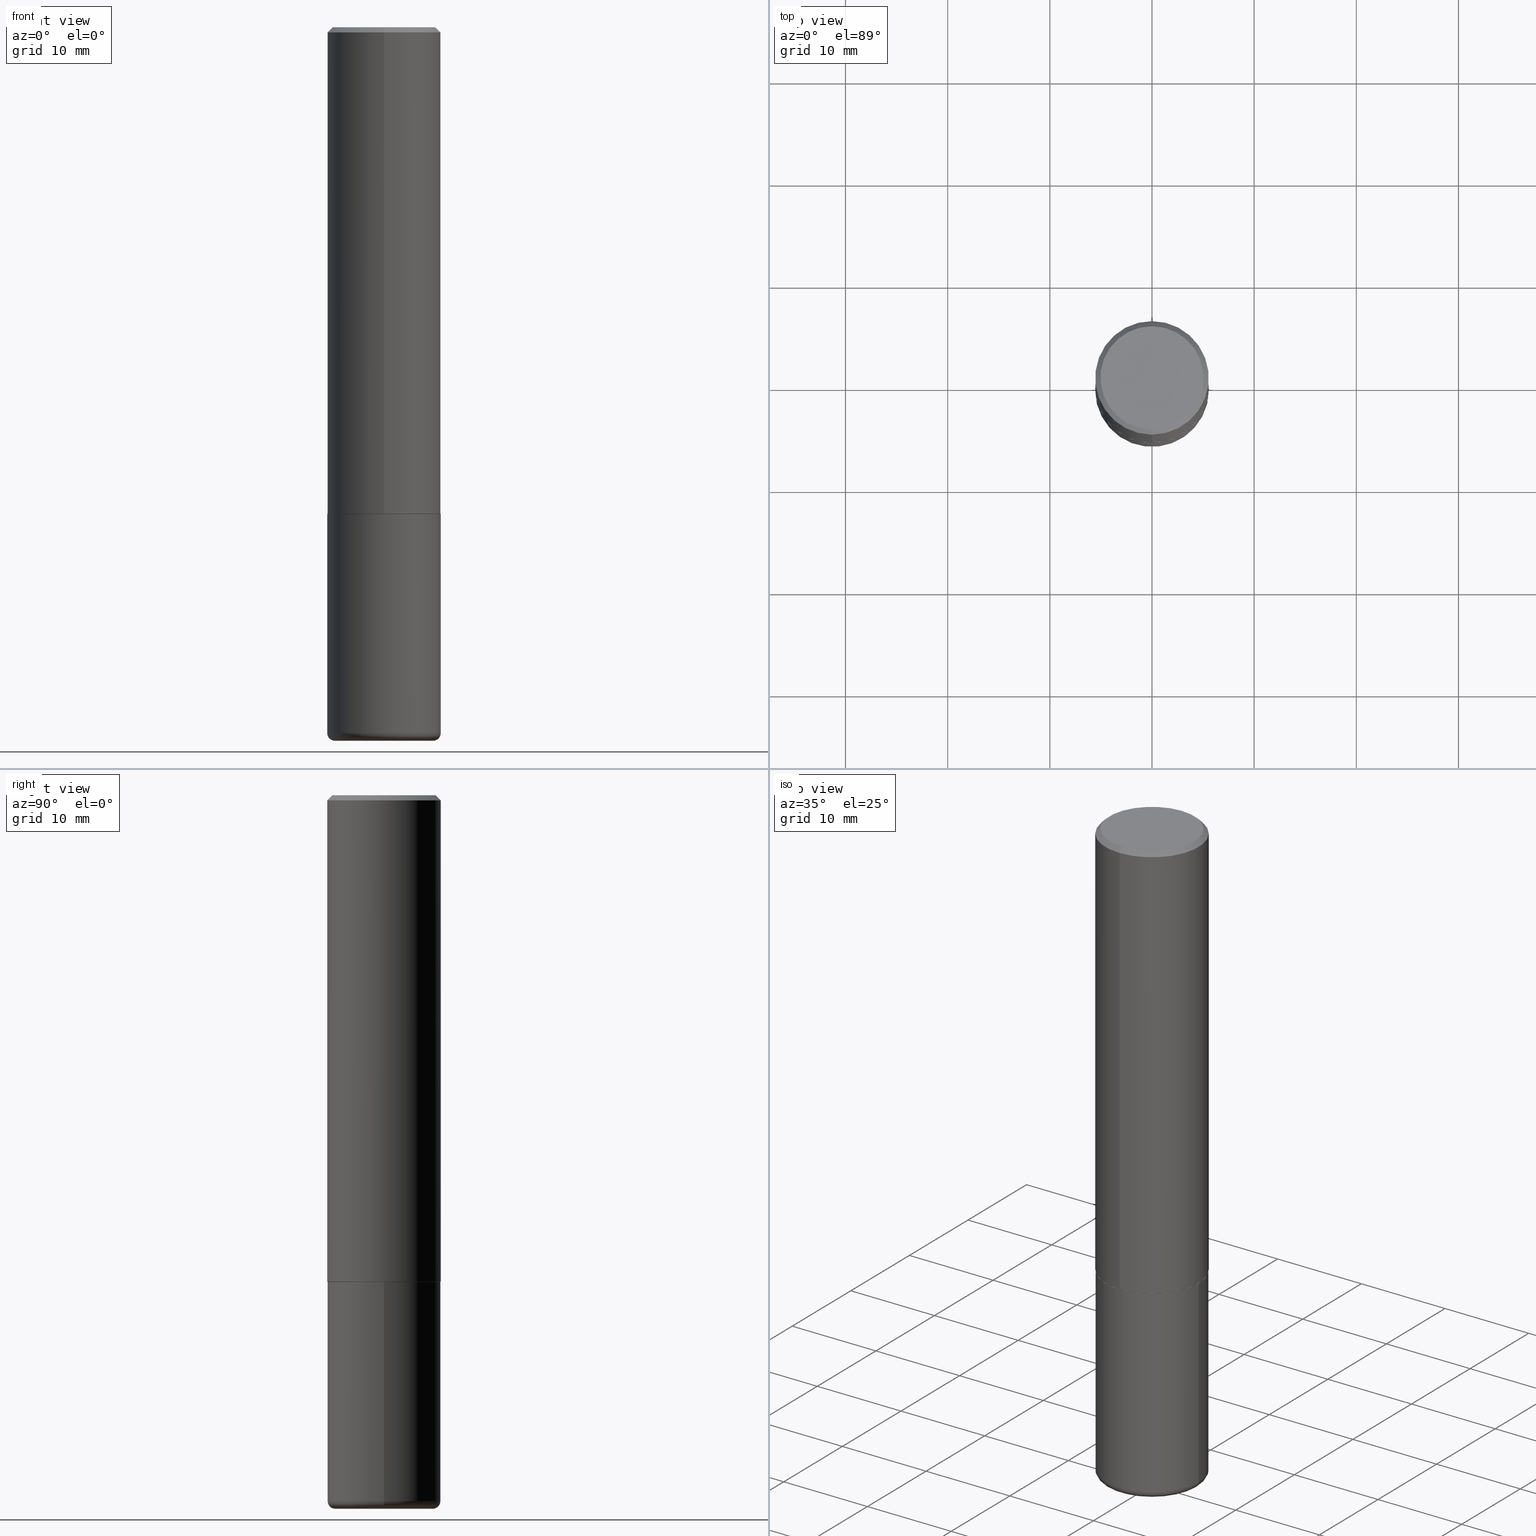
[diagram: canonical four-view strip — front | top / right | iso, engineering-drawing reading convention]
A machine part, canonical four-view strip (front | top / right | iso — engineering-drawing reading convention). The complete STEP part file that produces these views, byte-faithful:
ISO-10303-21;
HEADER;
FILE_DESCRIPTION (( 'STEP AP203' ),
    '1' );
FILE_NAME ('37163.STEP',
    '2024-03-01T21:19:41',
    ( '' ),
    ( '' ),
    'SwSTEP 2.0',
    'SolidWorks 2023',
    '' );
FILE_SCHEMA (( 'CONFIG_CONTROL_DESIGN' ));
ENDSEC;

DATA;
#1 = PLANE ( 'NONE',  #369 ) ;
#2 = DIMENSIONAL_EXPONENTS ( 1.000000000000000000, 0.000000000000000000, 0.000000000000000000, 0.000000000000000000, 0.000000000000000000, 0.000000000000000000, 0.000000000000000000 ) ;
#3 = APPROVAL_PERSON_ORGANIZATION ( #287, #378, #126 ) ;
#4 = DIRECTION ( 'NONE',  ( -1.000000000000000000, 6.982962677686265922E-15, -4.876176775795935793E-29 ) ) ;
#5 = DIRECTION ( 'NONE',  ( 1.000000000000000000, -6.982962677686271444E-15, 0.000000000000000000 ) ) ;
#6 = CARTESIAN_POINT ( 'NONE',  ( 4.584436167357195620E-29, -6.547698709831289980E-15, -1.875000000000000000 ) ) ;
#7 = EDGE_CURVE ( 'NONE', #402, #82, #205, .T. ) ;
#8 = CONICAL_SURFACE ( 'NONE', #124, 0.2187499999999999445, 0.7853981633974456145 ) ;
#9 = SECURITY_CLASSIFICATION_LEVEL ( 'unclassified' ) ;
#10 = CARTESIAN_POINT ( 'NONE',  ( 0.2187500000000000278, -1.527523085743871040E-15, 1.066663669705361025E-29 ) ) ;
#11 = ORIENTED_EDGE ( 'NONE', *, *, #362, .T. ) ;
#12 = PERSON_AND_ORGANIZATION_ROLE ( 'design_owner' ) ;
#13 = DIRECTION ( 'NONE',  ( 1.000000000000000000, -6.982962677686267499E-15, 0.000000000000000000 ) ) ;
#14 = DIRECTION ( 'NONE',  ( -2.445468806185136597E-29, 3.491481338843145583E-15, 1.000000000000000000 ) ) ;
#15 = CC_DESIGN_APPROVAL ( #378, ( #79 ) ) ;
#16 = ORIENTED_EDGE ( 'NONE', *, *, #114, .F. ) ;
#17 = DIRECTION ( 'NONE',  ( -2.445032622590504256E-29, 3.492105978576687648E-15, 1.000000000000000000 ) ) ;
#18 = CARTESIAN_POINT ( 'NONE',  ( 1.554312234475219551E-15, 0.2187500000000000833, -7.638981828136507804E-16 ) ) ;
#19 = CARTESIAN_POINT ( 'NONE',  ( 4.581991134734604485E-29, -6.544206603852712761E-15, -1.874000000000000110 ) ) ;
#20 = ORIENTED_EDGE ( 'NONE', *, *, #256, .F. ) ;
#21 = CIRCLE ( 'NONE', #49, 0.2187500000000001943 ) ;
#22 = MANIFOLD_SOLID_BREP ( 'Body-Move/Copy2[2]', #319 ) ;
#23 = EDGE_CURVE ( 'NONE', #82, #402, #382, .T. ) ;
#24 = VECTOR ( 'NONE', #147, 39.37007874015748143 ) ;
#25 = AXIS2_PLACEMENT_3D ( 'NONE', #388, #290, #389 ) ;
#26 = DATE_AND_TIME ( #412, #364 ) ;
#27 = CARTESIAN_POINT ( 'NONE',  ( -0.2187500000000000278, 1.554312234475219354E-15, -1.076017050993260762E-29 ) ) ;
#28 = APPROVAL_ROLE ( '' ) ;
#29 = EDGE_LOOP ( 'NONE', ( #182, #371, #47, #169 ) ) ;
#30 = APPLICATION_PROTOCOL_DEFINITION ( 'international standard', 'config_control_design', 1994, #279 ) ;
#31 = EDGE_CURVE ( 'NONE', #40, #148, #116, .T. ) ;
#32 = LINE ( 'NONE', #324, #343 ) ;
#33 = EDGE_CURVE ( 'NONE', #40, #347, #393, .T. ) ;
#34 = CARTESIAN_POINT ( 'NONE',  ( 0.000000000000000000, 0.000000000000000000, 0.000000000000000000 ) ) ;
#35 = UNCERTAINTY_MEASURE_WITH_UNIT (LENGTH_MEASURE( 1.000000000000000082E-05 ), #154, 'distance_accuracy_value', 'NONE');
#36 = AXIS2_PLACEMENT_3D ( 'NONE', #132, #146, #311 ) ;
#37 = CARTESIAN_POINT ( 'NONE',  ( 6.725039217009123399E-29, -9.601573681818648281E-15, -2.749999999999999556 ) ) ;
#38 = COORDINATED_UNIVERSAL_TIME_OFFSET ( 5, 0, .BEHIND. ) ;
#39 = DIRECTION ( 'NONE',  ( -2.445032622590503976E-29, 3.492105978576687648E-15, 1.000000000000000000 ) ) ;
#40 = VERTEX_POINT ( 'NONE', #90 ) ;
#41 = DIRECTION ( 'NONE',  ( -2.445032622590504256E-29, 3.492105978576687648E-15, 1.000000000000000000 ) ) ;
#42 = VERTEX_POINT ( 'NONE', #235 ) ;
#43 = CARTESIAN_POINT ( 'NONE',  ( -0.1887500000000000011, -8.155679827906167578E-15, -2.719999999999999751 ) ) ;
#44 = LOCAL_TIME ( 16, 19, 41.00000000000000000, #38 ) ;
#45 = COORDINATED_UNIVERSAL_TIME_OFFSET ( 5, 0, .BEHIND. ) ;
#46 = DIRECTION ( 'NONE',  ( -2.445032622590504256E-29, 3.492105978576687648E-15, 1.000000000000000000 ) ) ;
#47 = ORIENTED_EDGE ( 'NONE', *, *, #250, .F. ) ;
#48 = EDGE_CURVE ( 'NONE', #118, #138, #390, .T. ) ;
#49 = AXIS2_PLACEMENT_3D ( 'NONE', #222, #291, #197 ) ;
#50 = EDGE_LOOP ( 'NONE', ( #141, #212 ) ) ;
#51 = COORDINATED_UNIVERSAL_TIME_OFFSET ( 5, 0, .BEHIND. ) ;
#52 = LINE ( 'NONE', #152, #181 ) ;
#53 = ORIENTED_EDGE ( 'NONE', *, *, #62, .F. ) ;
#54 = PERSON_AND_ORGANIZATION ( #242, #258 ) ;
#55 = DIRECTION ( 'NONE',  ( 4.937700262164533843E-15, 0.7071067811865431318, -0.7071067811865517916 ) ) ;
#56 = AXIS2_PLACEMENT_3D ( 'NONE', #19, #275, #88 ) ;
#57 = LOCAL_TIME ( 16, 19, 41.00000000000000000, #253 ) ;
#58 = ORIENTED_EDGE ( 'NONE', *, *, #392, .F. ) ;
#59 = EDGE_CURVE ( 'NONE', #347, #273, #200, .T. ) ;
#60 = CIRCLE ( 'NONE', #95, 0.1987500000000002320 ) ;
#61 = CYLINDRICAL_SURFACE ( 'NONE', #395, 0.2187500000000000833 ) ;
#62 = EDGE_CURVE ( 'NONE', #42, #308, #292, .T. ) ;
#63 = APPROVAL_DATE_TIME ( #354, #378 ) ;
#64 = DIRECTION ( 'NONE',  ( 7.105427357601001859E-15, 1.000000000000000000, -3.491481338843145583E-15 ) ) ;
#65 = ORIENTED_EDGE ( 'NONE', *, *, #385, .F. ) ;
#66 = DIRECTION ( 'NONE',  ( -6.982962677686265922E-15, -1.000000000000000000, 3.492105978576688042E-15 ) ) ;
#67 = DIRECTION ( 'NONE',  ( -1.000000000000000000, 6.982962677686265922E-15, -4.876176775795935793E-29 ) ) ;
#68 = LINE ( 'NONE', #10, #309 ) ;
#69 = CARTESIAN_POINT ( 'NONE',  ( 4.890065245181030653E-31, -6.984211957153406209E-17, -0.02000000000000009062 ) ) ;
#70 = ORIENTED_EDGE ( 'NONE', *, *, #114, .T. ) ;
#71 = FACE_OUTER_BOUND ( 'NONE', #396, .T. ) ;
#72 = TOROIDAL_SURFACE ( 'NONE', #257, 0.1887500000000000011, 0.02999999999999971440 ) ;
#73 = CIRCLE ( 'NONE', #112, 0.1887500000000000011 ) ;
#74 = CARTESIAN_POINT ( 'NONE',  ( 6.651675152823572126E-29, -9.496829241653356490E-15, -2.719999999999999751 ) ) ;
#75 = DIRECTION ( 'NONE',  ( -2.445468806185136597E-29, 3.491481338843145583E-15, 1.000000000000000000 ) ) ;
#76 = APPROVAL_DATE_TIME ( #229, #232 ) ;
#77 = ORIENTED_EDGE ( 'NONE', *, *, #48, .T. ) ;
#78 = DIRECTION ( 'NONE',  ( -2.445468806185136597E-29, 3.491481338843145583E-15, 1.000000000000000000 ) ) ;
#79 = SECURITY_CLASSIFICATION ( '', '', #9 ) ;
#80 = ORIENTED_EDGE ( 'NONE', *, *, #31, .T. ) ;
#81 = CARTESIAN_POINT ( 'NONE',  ( 1.527523085743870843E-15, 0.2187499999999998890, -0.02000000000000085390 ) ) ;
#82 = VERTEX_POINT ( 'NONE', #367 ) ;
#83 = PERSON_AND_ORGANIZATION_ROLE ( 'creator' ) ;
#84 = CLOSED_SHELL ( 'NONE', ( #110, #405, #331, #351, #107, #366 ) ) ;
#85 = VECTOR ( 'NONE', #327, 39.37007874015748143 ) ;
#86 = EDGE_CURVE ( 'NONE', #118, #347, #313, .T. ) ;
#87 = ORIENTED_EDGE ( 'NONE', *, *, #86, .F. ) ;
#88 = DIRECTION ( 'NONE',  ( -6.982962677686265922E-15, -1.000000000000000000, 3.746534391310986401E-15 ) ) ;
#89 = ORIENTED_EDGE ( 'NONE', *, *, #363, .F. ) ;
#90 = CARTESIAN_POINT ( 'NONE',  ( 1.457693458967008925E-15, 0.1987500000000002320, -9.585796904813013388E-16 ) ) ;
#91 = CARTESIAN_POINT ( 'NONE',  ( -0.1887500000000000011, -8.101470637624799929E-15, -2.749999999999999556 ) ) ;
#92 = CIRCLE ( 'NONE', #117, 0.1887500000000000011 ) ;
#93 = DIRECTION ( 'NONE',  ( 1.000000000000000000, -6.982962677686262766E-15, 4.883557194083112340E-29 ) ) ;
#94 = ADVANCED_BREP_SHAPE_REPRESENTATION ( '37163', ( #158, #22, #36 ), #136 ) ;
#95 = AXIS2_PLACEMENT_3D ( 'NONE', #210, #184, #281 ) ;
#96 = DIRECTION ( 'NONE',  ( -6.982962677686265922E-15, -1.000000000000000000, 3.492862791899308860E-15 ) ) ;
#97 = APPLICATION_CONTEXT ( 'configuration controlled 3d designs of mechanical parts and assemblies' ) ;
#98 = CALENDAR_DATE ( 2024, 1, 3 ) ;
#99 = CARTESIAN_POINT ( 'NONE',  ( 6.651675152823572126E-29, -9.496829241653356490E-15, -2.719999999999999751 ) ) ;
#100 = ORIENTED_EDGE ( 'NONE', *, *, #59, .T. ) ;
#101 = DIRECTION ( 'NONE',  ( 2.438088387897960049E-29, -3.491481338843145188E-15, -1.000000000000000000 ) ) ;
#102 = FACE_OUTER_BOUND ( 'NONE', #246, .T. ) ;
#103 = AXIS2_PLACEMENT_3D ( 'NONE', #174, #17, #401 ) ;
#104 = LOCAL_TIME ( 16, 19, 41.00000000000000000, #51 ) ;
#105 = DIRECTION ( 'NONE',  ( -6.982962677686265922E-15, -1.000000000000000000, 3.492105978576687648E-15 ) ) ;
#106 = CYLINDRICAL_SURFACE ( 'NONE', #216, 0.2187500000000000278 ) ;
#107 = ADVANCED_FACE ( 'NONE', ( #185 ), #72, .T. ) ;
#108 = PERSON_AND_ORGANIZATION ( #242, #258 ) ;
#109 = CARTESIAN_POINT ( 'NONE',  ( 0.2187499999999998890, -1.102435232739722812E-14, -2.719999999999999751 ) ) ;
#110 = ADVANCED_FACE ( 'NONE', ( #188 ), #217, .T. ) ;
#111 = DIRECTION ( 'NONE',  ( 6.982962677686265922E-15, 1.000000000000000000, -3.492862791899308860E-15 ) ) ;
#112 = AXIS2_PLACEMENT_3D ( 'NONE', #37, #326, #225 ) ;
#113 = DIRECTION ( 'NONE',  ( 1.000000000000000000, -6.982962677686267499E-15, 0.000000000000000000 ) ) ;
#114 = EDGE_CURVE ( 'NONE', #175, #402, #68, .T. ) ;
#115 = CARTESIAN_POINT ( 'NONE',  ( 4.585254011597131119E-29, -6.546527510330898707E-15, -1.875000000000000000 ) ) ;
#116 = CIRCLE ( 'NONE', #264, 0.1987500000000002320 ) ;
#117 = AXIS2_PLACEMENT_3D ( 'NONE', #133, #263, #203 ) ;
#118 = VERTEX_POINT ( 'NONE', #165 ) ;
#119 = DIRECTION ( 'NONE',  ( 2.445032622590504256E-29, -3.492105978576687648E-15, -1.000000000000000000 ) ) ;
#120 = EDGE_CURVE ( 'NONE', #308, #42, #166, .T. ) ;
#121 = ORIENTED_EDGE ( 'NONE', *, *, #392, .T. ) ;
#122 = CARTESIAN_POINT ( 'NONE',  ( 4.584436167357195620E-29, -6.547698709831289980E-15, -1.875000000000000000 ) ) ;
#123 = AXIS2_PLACEMENT_3D ( 'NONE', #295, #41, #261 ) ;
#124 = AXIS2_PLACEMENT_3D ( 'NONE', #173, #370, #111 ) ;
#125 = ORIENTED_EDGE ( 'NONE', *, *, #286, .T. ) ;
#126 = APPROVAL_ROLE ( '' ) ;
#127 = APPROVAL_STATUS ( 'not_yet_approved' ) ;
#128 = DATE_TIME_ROLE ( 'classification_date' ) ;
#129 = AXIS2_PLACEMENT_3D ( 'NONE', #303, #46, #312 ) ;
#130 = FACE_OUTER_BOUND ( 'NONE', #254, .T. ) ;
#131 = CC_DESIGN_PERSON_AND_ORGANIZATION_ASSIGNMENT ( #108, #302, ( #187 ) ) ;
#132 = CARTESIAN_POINT ( 'NONE',  ( 0.000000000000000000, 0.000000000000000000, 0.000000000000000000 ) ) ;
#133 = CARTESIAN_POINT ( 'NONE',  ( 6.725039217009123399E-29, -9.601573681818648281E-15, -2.749999999999999556 ) ) ;
#134 = DATE_AND_TIME ( #315, #104 ) ;
#135 = DIRECTION ( 'NONE',  ( -2.445032622590504256E-29, 3.492105978576687648E-15, 1.000000000000000000 ) ) ;
#136 =( GEOMETRIC_REPRESENTATION_CONTEXT ( 3 ) GLOBAL_UNCERTAINTY_ASSIGNED_CONTEXT ( ( #35 ) ) GLOBAL_UNIT_ASSIGNED_CONTEXT ( ( #154, #249, #221 ) ) REPRESENTATION_CONTEXT ( 'NONE', 'WORKASPACE' ) );
#137 = PERSON_AND_ORGANIZATION ( #242, #258 ) ;
#138 = VERTEX_POINT ( 'NONE', #269 ) ;
#139 = ADVANCED_FACE ( 'NONE', ( #71 ), #230, .F. ) ;
#140 = PERSON_AND_ORGANIZATION ( #242, #258 ) ;
#141 = ORIENTED_EDGE ( 'NONE', *, *, #7, .T. ) ;
#142 = AXIS2_PLACEMENT_3D ( 'NONE', #277, #14, #113 ) ;
#143 = CC_DESIGN_APPROVAL ( #213, ( #157 ) ) ;
#144 = DIRECTION ( 'NONE',  ( 1.000000000000000000, -6.982962677686262766E-15, 4.883557194083112340E-29 ) ) ;
#145 = EDGE_LOOP ( 'NONE', ( #236, #414, #215, #100 ) ) ;
#146 = DIRECTION ( 'NONE',  ( 0.000000000000000000, 0.000000000000000000, 1.000000000000000000 ) ) ;
#147 = DIRECTION ( 'NONE',  ( -2.445032622590504256E-29, 3.492105978576687648E-15, 1.000000000000000000 ) ) ;
#148 = VERTEX_POINT ( 'NONE', #391 ) ;
#149 = AXIS2_PLACEMENT_3D ( 'NONE', #6, #135, #167 ) ;
#150 = CONICAL_SURFACE ( 'NONE', #359, 0.2177499999999999991, 0.7853981633975165577 ) ;
#151 = CARTESIAN_POINT ( 'NONE',  ( 6.467688980457750273E-45, -9.237445401567455569E-31, -2.645236272391840412E-16 ) ) ;
#152 = CARTESIAN_POINT ( 'NONE',  ( -1.500733937012521346E-15, -0.2187500000000000278, -0.01999999999999932734 ) ) ;
#153 = DIRECTION ( 'NONE',  ( 1.000000000000000000, -6.982962677686269866E-15, 0.000000000000000000 ) ) ;
#154 =( CONVERSION_BASED_UNIT ( 'INCH', #316 ) LENGTH_UNIT ( ) NAMED_UNIT ( #2 ) );
#155 = PRODUCT_DEFINITION_SHAPE ( 'NONE', 'NONE',  #157 ) ;
#156 = AXIS2_PLACEMENT_3D ( 'NONE', #177, #304, #144 ) ;
#157 = PRODUCT_DEFINITION ( 'UNKNOWN', '', #187, #377 ) ;
#158 = MANIFOLD_SOLID_BREP ( 'Body-Move/Copy2[1]', #84 ) ;
#159 = PERSON_AND_ORGANIZATION_ROLE ( 'creator' ) ;
#160 = CIRCLE ( 'NONE', #413, 0.2187499999999999445 ) ;
#161 = CARTESIAN_POINT ( 'NONE',  ( -1.520540123066138483E-15, -0.2177500000000065494, -1.874999999999999334 ) ) ;
#162 = DIRECTION ( 'NONE',  ( -2.445468806185136597E-29, 3.491481338843145583E-15, 1.000000000000000000 ) ) ;
#163 = DATE_TIME_ROLE ( 'creation_date' ) ;
#164 = ORIENTED_EDGE ( 'NONE', *, *, #59, .F. ) ;
#165 = CARTESIAN_POINT ( 'NONE',  ( 1.554312234475242822E-15, 0.2187499999999936440, -1.874000000000000776 ) ) ;
#166 = CIRCLE ( 'NONE', #123, 0.2177499999999999991 ) ;
#167 = DIRECTION ( 'NONE',  ( -6.982962677686265922E-15, -1.000000000000000000, 3.763740060157423393E-15 ) ) ;
#168 = CIRCLE ( 'NONE', #346, 0.02999999999999971440 ) ;
#169 = ORIENTED_EDGE ( 'NONE', *, *, #384, .F. ) ;
#170 = DATE_AND_TIME ( #237, #233 ) ;
#171 = ADVANCED_FACE ( 'NONE', ( #262 ), #334, .T. ) ;
#172 = ORIENTED_EDGE ( 'NONE', *, *, #384, .T. ) ;
#173 = CARTESIAN_POINT ( 'NONE',  ( 4.890065245181030653E-31, -6.984211957153406209E-17, -0.02000000000000009062 ) ) ;
#174 = CARTESIAN_POINT ( 'NONE',  ( 4.584436167357195620E-29, -6.547698709831289980E-15, -1.875000000000000000 ) ) ;
#175 = VERTEX_POINT ( 'NONE', #109 ) ;
#176 = DIRECTION ( 'NONE',  ( -2.445032622590504256E-29, 3.492105978576687648E-15, 1.000000000000000000 ) ) ;
#177 = CARTESIAN_POINT ( 'NONE',  ( 6.651675152823572126E-29, -9.496829241653356490E-15, -2.719999999999999751 ) ) ;
#178 = VERTEX_POINT ( 'NONE', #266 ) ;
#179 = APPROVAL_STATUS ( 'not_yet_approved' ) ;
#180 = DIRECTION ( 'NONE',  ( 6.982962677686265922E-15, 1.000000000000000000, -3.492862791899308860E-15 ) ) ;
#181 = VECTOR ( 'NONE', #280, 39.37007874015748854 ) ;
#182 = ORIENTED_EDGE ( 'NONE', *, *, #120, .T. ) ;
#183 = ADVANCED_FACE ( 'NONE', ( #361 ), #332, .T. ) ;
#184 = DIRECTION ( 'NONE',  ( -2.445032622590504256E-29, 3.492105978576687648E-15, 1.000000000000000000 ) ) ;
#185 = FACE_OUTER_BOUND ( 'NONE', #300, .T. ) ;
#186 = AXIS2_PLACEMENT_3D ( 'NONE', #34, #78, #224 ) ;
#187 = PRODUCT_DEFINITION_FORMATION_WITH_SPECIFIED_SOURCE ( 'ANY', '', #251, .NOT_KNOWN. ) ;
#188 = FACE_OUTER_BOUND ( 'NONE', #234, .T. ) ;
#189 = DIRECTION ( 'NONE',  ( -6.982962677686265922E-15, -1.000000000000000000, 3.763740060157423393E-15 ) ) ;
#190 = LINE ( 'NONE', #293, #226 ) ;
#191 = ORIENTED_EDGE ( 'NONE', *, *, #362, .F. ) ;
#192 = CARTESIAN_POINT ( 'NONE',  ( 6.651675152823572126E-29, -9.496829241653356490E-15, -2.719999999999999751 ) ) ;
#193 = DIRECTION ( 'NONE',  ( -2.445468806185136877E-29, 3.491481338843145188E-15, 1.000000000000000000 ) ) ;
#194 = CARTESIAN_POINT ( 'NONE',  ( -1.527523085743871237E-15, -0.2187500000000000833, 7.638981828136507804E-16 ) ) ;
#195 = DIRECTION ( 'NONE',  ( -4.937700262164884886E-15, -0.7071067811865933139, 0.7071067811865017205 ) ) ;
#196 = CARTESIAN_POINT ( 'NONE',  ( 4.585254011597131119E-29, -6.546527510330898707E-15, -1.875000000000000000 ) ) ;
#197 = DIRECTION ( 'NONE',  ( -6.982962677686265922E-15, -1.000000000000000000, 3.746534391310986401E-15 ) ) ;
#198 = ADVANCED_FACE ( 'NONE', ( #238 ), #8, .T. ) ;
#199 = LINE ( 'NONE', #194, #85 ) ;
#200 = CIRCLE ( 'NONE', #208, 0.2187499999999999445 ) ;
#201 = ORIENTED_EDGE ( 'NONE', *, *, #86, .T. ) ;
#202 = DIRECTION ( 'NONE',  ( 2.438088387897960049E-29, -3.491481338843145188E-15, -1.000000000000000000 ) ) ;
#203 = DIRECTION ( 'NONE',  ( 1.000000000000000000, -6.982962677686272233E-15, 0.000000000000000000 ) ) ;
#204 = EDGE_LOOP ( 'NONE', ( #320, #380, #305, #376 ) ) ;
#205 = CIRCLE ( 'NONE', #142, 0.2187500000000000000 ) ;
#206 = AXIS2_PLACEMENT_3D ( 'NONE', #417, #202, #67 ) ;
#207 = MECHANICAL_CONTEXT ( 'NONE', #279, 'mechanical' ) ;
#208 = AXIS2_PLACEMENT_3D ( 'NONE', #214, #176, #345 ) ;
#209 = CIRCLE ( 'NONE', #239, 0.2187500000000000278 ) ;
#210 = CARTESIAN_POINT ( 'NONE',  ( 6.467688980457750273E-45, -9.237445401567455569E-31, -2.645236272391840412E-16 ) ) ;
#211 = EDGE_CURVE ( 'NONE', #148, #40, #60, .T. ) ;
#212 = ORIENTED_EDGE ( 'NONE', *, *, #23, .T. ) ;
#213 = APPROVAL ( #179, 'UNSPECIFIED' ) ;
#214 = CARTESIAN_POINT ( 'NONE',  ( 4.890065245181030653E-31, -6.984211957153406209E-17, -0.02000000000000009062 ) ) ;
#215 = ORIENTED_EDGE ( 'NONE', *, *, #33, .T. ) ;
#216 = AXIS2_PLACEMENT_3D ( 'NONE', #274, #75, #408 ) ;
#217 = CYLINDRICAL_SURFACE ( 'NONE', #186, 0.2187500000000000278 ) ;
#218 = CC_DESIGN_PERSON_AND_ORGANIZATION_ASSIGNMENT ( #54, #12, ( #251 ) ) ;
#219 = VERTEX_POINT ( 'NONE', #91 ) ;
#220 = ADVANCED_FACE ( 'NONE', ( #374 ), #150, .T. ) ;
#221 =( NAMED_UNIT ( * ) SI_UNIT ( $, .STERADIAN. ) SOLID_ANGLE_UNIT ( ) );
#222 = CARTESIAN_POINT ( 'NONE',  ( 4.581991134734604485E-29, -6.544206603852712761E-15, -1.874000000000000110 ) ) ;
#223 = APPROVAL_PERSON_ORGANIZATION ( #298, #232, #28 ) ;
#224 = DIRECTION ( 'NONE',  ( 1.000000000000000000, -6.982962677686266711E-15, 4.876176775795935232E-29 ) ) ;
#225 = DIRECTION ( 'NONE',  ( 1.000000000000000000, -6.982962677686272233E-15, 0.000000000000000000 ) ) ;
#226 = VECTOR ( 'NONE', #322, 39.37007874015748143 ) ;
#227 = CARTESIAN_POINT ( 'NONE',  ( 4.584436167357195620E-29, -6.547698709831289980E-15, -1.875000000000000000 ) ) ;
#228 = PLANE ( 'NONE',  #206 ) ;
#229 = DATE_AND_TIME ( #289, #44 ) ;
#230 = PLANE ( 'NONE',  #404 ) ;
#231 = ORIENTED_EDGE ( 'NONE', *, *, #403, .T. ) ;
#232 = APPROVAL ( #127, 'UNSPECIFIED' ) ;
#233 = LOCAL_TIME ( 16, 19, 41.00000000000000000, #45 ) ;
#234 = EDGE_LOOP ( 'NONE', ( #350, #294, #248, #16 ) ) ;
#235 = CARTESIAN_POINT ( 'NONE',  ( 1.550759520796464998E-15, 0.2177499999999934210, -1.875000000000000888 ) ) ;
#236 = ORIENTED_EDGE ( 'NONE', *, *, #276, .F. ) ;
#237 = CALENDAR_DATE ( 2024, 1, 3 ) ;
#238 = FACE_OUTER_BOUND ( 'NONE', #145, .T. ) ;
#239 = AXIS2_PLACEMENT_3D ( 'NONE', #74, #162, #5 ) ;
#240 = ORIENTED_EDGE ( 'NONE', *, *, #120, .F. ) ;
#241 = APPLICATION_PROTOCOL_DEFINITION ( 'international standard', 'config_control_design', 1994, #97 ) ;
#242 = PERSON ( 'UNSPECIFIED', 'UNSPECIFIED', 'UNSPECIFIED', ('UNSPECIFIED'), ('UNSPECIFIED'), ('UNSPECIFIED') ) ;
#243 = CC_DESIGN_PERSON_AND_ORGANIZATION_ASSIGNMENT ( #137, #268, ( #79 ) ) ;
#244 = AXIS2_PLACEMENT_3D ( 'NONE', #115, #348, #13 ) ;
#245 = CC_DESIGN_SECURITY_CLASSIFICATION ( #79, ( #187 ) ) ;
#246 = EDGE_LOOP ( 'NONE', ( #20, #270 ) ) ;
#247 = CARTESIAN_POINT ( 'NONE',  ( -1.500733937012521346E-15, -0.2187500000000000278, -0.01999999999999932734 ) ) ;
#248 = ORIENTED_EDGE ( 'NONE', *, *, #7, .F. ) ;
#249 =( NAMED_UNIT ( * ) PLANE_ANGLE_UNIT ( ) SI_UNIT ( $, .RADIAN. ) );
#250 = EDGE_CURVE ( 'NONE', #138, #118, #21, .T. ) ;
#251 = PRODUCT ( '37163', '37163', '', ( #207 ) ) ;
#252 = FACE_OUTER_BOUND ( 'NONE', #285, .T. ) ;
#253 = COORDINATED_UNIVERSAL_TIME_OFFSET ( 5, 0, .BEHIND. ) ;
#254 = EDGE_LOOP ( 'NONE', ( #80, #379 ) ) ;
#255 = PERSON_AND_ORGANIZATION ( #242, #258 ) ;
#256 = EDGE_CURVE ( 'NONE', #178, #219, #73, .T. ) ;
#257 = AXIS2_PLACEMENT_3D ( 'NONE', #192, #409, #93 ) ;
#258 = ORGANIZATION ( 'UNSPECIFIED', 'UNSPECIFIED', '' ) ;
#259 = ADVANCED_FACE ( 'NONE', ( #328 ), #335, .T. ) ;
#260 = ORIENTED_EDGE ( 'NONE', *, *, #48, .F. ) ;
#261 = DIRECTION ( 'NONE',  ( -6.982962677686265922E-15, -1.000000000000000000, 3.763740060157423393E-15 ) ) ;
#262 = FACE_OUTER_BOUND ( 'NONE', #29, .T. ) ;
#263 = DIRECTION ( 'NONE',  ( -2.445468806185136597E-29, 3.491481338843145583E-15, 1.000000000000000000 ) ) ;
#264 = AXIS2_PLACEMENT_3D ( 'NONE', #151, #339, #272 ) ;
#265 = ORIENTED_EDGE ( 'NONE', *, *, #286, .F. ) ;
#266 = CARTESIAN_POINT ( 'NONE',  ( 0.1887500000000000011, -1.091960788723193160E-14, -2.749999999999999556 ) ) ;
#267 = CARTESIAN_POINT ( 'NONE',  ( 0.2187500000000000000, -8.074050596074770339E-15, -1.875000000000000000 ) ) ;
#268 = PERSON_AND_ORGANIZATION_ROLE ( 'classification_officer' ) ;
#269 = CARTESIAN_POINT ( 'NONE',  ( -1.527523085743826075E-15, -0.2187500000000067446, -1.873999999999999222 ) ) ;
#270 = ORIENTED_EDGE ( 'NONE', *, *, #403, .F. ) ;
#271 = CIRCLE ( 'NONE', #301, 0.2187500000000000278 ) ;
#272 = DIRECTION ( 'NONE',  ( -6.982962677686265922E-15, -1.000000000000000000, 3.492105978576687648E-15 ) ) ;
#273 = VERTEX_POINT ( 'NONE', #247 ) ;
#274 = CARTESIAN_POINT ( 'NONE',  ( 0.000000000000000000, 0.000000000000000000, 0.000000000000000000 ) ) ;
#275 = DIRECTION ( 'NONE',  ( -2.445032622590504256E-29, 3.492105978576687648E-15, 1.000000000000000000 ) ) ;
#276 = EDGE_CURVE ( 'NONE', #148, #273, #52, .T. ) ;
#277 = CARTESIAN_POINT ( 'NONE',  ( 4.585254011597131119E-29, -6.546527510330898707E-15, -1.875000000000000000 ) ) ;
#278 = VECTOR ( 'NONE', #193, 39.37007874015748143 ) ;
#279 = APPLICATION_CONTEXT ( 'configuration controlled 3d designs of mechanical parts and assemblies' ) ;
#280 = DIRECTION ( 'NONE',  ( -4.851104656540950075E-15, -0.7071067811865480168, -0.7071067811865469066 ) ) ;
#281 = DIRECTION ( 'NONE',  ( -6.982962677686265922E-15, -1.000000000000000000, 3.492105978576687648E-15 ) ) ;
#282 = COORDINATED_UNIVERSAL_TIME_OFFSET ( 5, 0, .BEHIND. ) ;
#283 = CARTESIAN_POINT ( 'NONE',  ( 4.890065245181030653E-31, -6.984211957153406209E-17, -0.02000000000000009062 ) ) ;
#284 = AXIS2_PLACEMENT_3D ( 'NONE', #69, #119, #180 ) ;
#285 = EDGE_LOOP ( 'NONE', ( #87, #77, #121, #164 ) ) ;
#286 = EDGE_CURVE ( 'NONE', #178, #175, #168, .T. ) ;
#287 = PERSON_AND_ORGANIZATION ( #242, #258 ) ;
#288 = DIRECTION ( 'NONE',  ( -1.000000000000000000, 7.105427357600993970E-15, 0.000000000000000000 ) ) ;
#289 = CALENDAR_DATE ( 2024, 1, 3 ) ;
#290 = DIRECTION ( 'NONE',  ( 2.445032622590503976E-29, -3.492105978576687648E-15, -1.000000000000000000 ) ) ;
#291 = DIRECTION ( 'NONE',  ( -2.445032622590504256E-29, 3.492105978576687648E-15, 1.000000000000000000 ) ) ;
#292 = CIRCLE ( 'NONE', #103, 0.2177499999999999991 ) ;
#293 = CARTESIAN_POINT ( 'NONE',  ( 1.547206807117663705E-15, 0.2177499999999934210, -1.875000000000000888 ) ) ;
#294 = ORIENTED_EDGE ( 'NONE', *, *, #372, .T. ) ;
#295 = CARTESIAN_POINT ( 'NONE',  ( 4.584436167357195620E-29, -6.547698709831289980E-15, -1.875000000000000000 ) ) ;
#296 = FACE_OUTER_BOUND ( 'NONE', #50, .T. ) ;
#297 = CC_DESIGN_DATE_AND_TIME_ASSIGNMENT ( #26, #128, ( #79 ) ) ;
#298 = PERSON_AND_ORGANIZATION ( #242, #258 ) ;
#299 = LINE ( 'NONE', #27, #278 ) ;
#300 = EDGE_LOOP ( 'NONE', ( #191, #231, #125, #65 ) ) ;
#301 = AXIS2_PLACEMENT_3D ( 'NONE', #99, #329, #356 ) ;
#302 = PERSON_AND_ORGANIZATION_ROLE ( 'design_supplier' ) ;
#303 = CARTESIAN_POINT ( 'NONE',  ( 0.000000000000000000, 0.000000000000000000, 0.000000000000000000 ) ) ;
#304 = DIRECTION ( 'NONE',  ( -2.445468806185136597E-29, 3.491481338843145583E-15, 1.000000000000000000 ) ) ;
#305 = ORIENTED_EDGE ( 'NONE', *, *, #306, .T. ) ;
#306 = EDGE_CURVE ( 'NONE', #273, #347, #160, .T. ) ;
#307 = ORIENTED_EDGE ( 'NONE', *, *, #62, .T. ) ;
#308 = VERTEX_POINT ( 'NONE', #161 ) ;
#309 = VECTOR ( 'NONE', #386, 39.37007874015748143 ) ;
#310 = FACE_OUTER_BOUND ( 'NONE', #410, .T. ) ;
#311 = DIRECTION ( 'NONE',  ( 1.000000000000000000, 0.000000000000000000, 0.000000000000000000 ) ) ;
#312 = DIRECTION ( 'NONE',  ( -6.982962677686265922E-15, -1.000000000000000000, 3.492105978576688042E-15 ) ) ;
#313 = LINE ( 'NONE', #18, #24 ) ;
#314 = EDGE_LOOP ( 'NONE', ( #89, #307, #172, #260 ) ) ;
#315 = CALENDAR_DATE ( 2024, 1, 3 ) ;
#316 = LENGTH_MEASURE_WITH_UNIT ( LENGTH_MEASURE( 0.02539999999999999897 ), #398 );
#317 = CC_DESIGN_DATE_AND_TIME_ASSIGNMENT ( #134, #163, ( #157 ) ) ;
#318 = DIRECTION ( 'NONE',  ( -6.982962677686266711E-15, -1.000000000000000000, 3.491481338843145583E-15 ) ) ;
#319 = CLOSED_SHELL ( 'NONE', ( #171, #183, #259, #198, #340, #220, #139, #333 ) ) ;
#320 = ORIENTED_EDGE ( 'NONE', *, *, #211, .F. ) ;
#321 = SHAPE_DEFINITION_REPRESENTATION ( #155, #94 ) ;
#322 = DIRECTION ( 'NONE',  ( 5.024295867788404755E-15, 0.7071067811865981989, 0.7071067811864968355 ) ) ;
#323 = ORIENTED_EDGE ( 'NONE', *, *, #23, .F. ) ;
#324 = CARTESIAN_POINT ( 'NONE',  ( -1.520540123066138483E-15, -0.2177500000000065494, -1.874999999999999334 ) ) ;
#325 = CARTESIAN_POINT ( 'NONE',  ( -0.2187499999999998890, -7.942517007178138911E-15, -2.719999999999999751 ) ) ;
#326 = DIRECTION ( 'NONE',  ( -2.445468806185136597E-29, 3.491481338843145583E-15, 1.000000000000000000 ) ) ;
#327 = DIRECTION ( 'NONE',  ( -2.445032622590504256E-29, 3.492105978576687648E-15, 1.000000000000000000 ) ) ;
#328 = FACE_OUTER_BOUND ( 'NONE', #204, .T. ) ;
#329 = DIRECTION ( 'NONE',  ( -2.445468806185136597E-29, 3.491481338843145583E-15, 1.000000000000000000 ) ) ;
#330 = ORIENTED_EDGE ( 'NONE', *, *, #250, .T. ) ;
#331 = ADVANCED_FACE ( 'NONE', ( #296 ), #1, .F. ) ;
#332 = CYLINDRICAL_SURFACE ( 'NONE', #129, 0.2187500000000000833 ) ;
#333 = ADVANCED_FACE ( 'NONE', ( #130 ), #358, .F. ) ;
#334 = CONICAL_SURFACE ( 'NONE', #149, 0.2177499999999999991, 0.7853981633975165577 ) ;
#335 = CONICAL_SURFACE ( 'NONE', #284, 0.2187499999999999445, 0.7853981633974456145 ) ;
#336 = ORIENTED_EDGE ( 'NONE', *, *, #394, .F. ) ;
#337 = PERSON_AND_ORGANIZATION ( #242, #258 ) ;
#338 = CARTESIAN_POINT ( 'NONE',  ( 1.527523085743870843E-15, 0.2187499999999998890, -0.02000000000000085390 ) ) ;
#339 = DIRECTION ( 'NONE',  ( -2.445032622590504256E-29, 3.492105978576687648E-15, 1.000000000000000000 ) ) ;
#340 = ADVANCED_FACE ( 'NONE', ( #252 ), #61, .T. ) ;
#341 = APPROVAL_ROLE ( '' ) ;
#342 = CC_DESIGN_APPROVAL ( #232, ( #187 ) ) ;
#343 = VECTOR ( 'NONE', #195, 39.37007874015748143 ) ;
#344 = ORIENTED_EDGE ( 'NONE', *, *, #306, .F. ) ;
#345 = DIRECTION ( 'NONE',  ( -6.982962677686265922E-15, -1.000000000000000000, 3.492862791899308860E-15 ) ) ;
#346 = AXIS2_PLACEMENT_3D ( 'NONE', #373, #318, #153 ) ;
#347 = VERTEX_POINT ( 'NONE', #338 ) ;
#348 = DIRECTION ( 'NONE',  ( -2.445468806185136597E-29, 3.491481338843145583E-15, 1.000000000000000000 ) ) ;
#349 = PRODUCT_RELATED_PRODUCT_CATEGORY ( 'detail', '', ( #251 ) ) ;
#350 = ORIENTED_EDGE ( 'NONE', *, *, #394, .T. ) ;
#351 = ADVANCED_FACE ( 'NONE', ( #310 ), #106, .T. ) ;
#352 = VECTOR ( 'NONE', #55, 39.37007874015748854 ) ;
#353 = APPROVAL_PERSON_ORGANIZATION ( #337, #213, #341 ) ;
#354 = DATE_AND_TIME ( #98, #57 ) ;
#355 = DIRECTION ( 'NONE',  ( -2.445032622590504256E-29, 3.492105978576687648E-15, 1.000000000000000000 ) ) ;
#356 = DIRECTION ( 'NONE',  ( 1.000000000000000000, -6.982962677686271444E-15, 0.000000000000000000 ) ) ;
#357 = ORIENTED_EDGE ( 'NONE', *, *, #372, .F. ) ;
#358 = PLANE ( 'NONE',  #25 ) ;
#359 = AXIS2_PLACEMENT_3D ( 'NONE', #122, #416, #189 ) ;
#360 = ORIENTED_EDGE ( 'NONE', *, *, #256, .T. ) ;
#361 = FACE_OUTER_BOUND ( 'NONE', #365, .T. ) ;
#362 = EDGE_CURVE ( 'NONE', #219, #381, #406, .T. ) ;
#363 = EDGE_CURVE ( 'NONE', #42, #118, #190, .T. ) ;
#364 = LOCAL_TIME ( 16, 19, 41.00000000000000000, #282 ) ;
#365 = EDGE_LOOP ( 'NONE', ( #330, #201, #344, #58 ) ) ;
#366 = ADVANCED_FACE ( 'NONE', ( #102 ), #228, .T. ) ;
#367 = CARTESIAN_POINT ( 'NONE',  ( -0.2187500000000000000, -6.467366141516908442E-15, -1.875000000000000000 ) ) ;
#368 = ORIENTED_EDGE ( 'NONE', *, *, #385, .T. ) ;
#369 = AXIS2_PLACEMENT_3D ( 'NONE', #196, #101, #4 ) ;
#370 = DIRECTION ( 'NONE',  ( 2.445032622590504256E-29, -3.492105978576687648E-15, -1.000000000000000000 ) ) ;
#371 = ORIENTED_EDGE ( 'NONE', *, *, #363, .T. ) ;
#372 = EDGE_CURVE ( 'NONE', #381, #82, #299, .T. ) ;
#373 = CARTESIAN_POINT ( 'NONE',  ( 0.1887500000000000011, -1.081486344706663980E-14, -2.719999999999999751 ) ) ;
#374 = FACE_OUTER_BOUND ( 'NONE', #314, .T. ) ;
#375 = TOROIDAL_SURFACE ( 'NONE', #156, 0.1887500000000000011, 0.02999999999999971440 ) ;
#376 = ORIENTED_EDGE ( 'NONE', *, *, #33, .F. ) ;
#377 = DESIGN_CONTEXT ( 'detailed design', #97, 'design' ) ;
#378 = APPROVAL ( #415, 'UNSPECIFIED' ) ;
#379 = ORIENTED_EDGE ( 'NONE', *, *, #211, .T. ) ;
#380 = ORIENTED_EDGE ( 'NONE', *, *, #276, .T. ) ;
#381 = VERTEX_POINT ( 'NONE', #325 ) ;
#382 = CIRCLE ( 'NONE', #244, 0.2187500000000000000 ) ;
#383 = AXIS2_PLACEMENT_3D ( 'NONE', #43, #64, #288 ) ;
#384 = EDGE_CURVE ( 'NONE', #308, #138, #32, .T. ) ;
#385 = EDGE_CURVE ( 'NONE', #381, #175, #271, .T. ) ;
#386 = DIRECTION ( 'NONE',  ( -2.445468806185136877E-29, 3.491481338843145188E-15, 1.000000000000000000 ) ) ;
#387 = CARTESIAN_POINT ( 'NONE',  ( 0.000000000000000000, 0.000000000000000000, 0.000000000000000000 ) ) ;
#388 = CARTESIAN_POINT ( 'NONE',  ( 1.387863832190147008E-15, 0.1987500000000002320, -8.263178768617095401E-16 ) ) ;
#389 = DIRECTION ( 'NONE',  ( 6.982962677686265922E-15, 1.000000000000000000, -3.492105978576687648E-15 ) ) ;
#390 = CIRCLE ( 'NONE', #56, 0.2187500000000001943 ) ;
#391 = CARTESIAN_POINT ( 'NONE',  ( -1.432128957034807395E-15, -0.1987500000000002320, 4.295324360029333057E-16 ) ) ;
#392 = EDGE_CURVE ( 'NONE', #138, #273, #199, .T. ) ;
#393 = LINE ( 'NONE', #81, #352 ) ;
#394 = EDGE_CURVE ( 'NONE', #175, #381, #209, .T. ) ;
#395 = AXIS2_PLACEMENT_3D ( 'NONE', #387, #355, #66 ) ;
#396 = EDGE_LOOP ( 'NONE', ( #240, #53 ) ) ;
#397 = CC_DESIGN_PERSON_AND_ORGANIZATION_ASSIGNMENT ( #140, #83, ( #157 ) ) ;
#398 =( LENGTH_UNIT ( ) NAMED_UNIT ( * ) SI_UNIT ( $, .METRE. ) );
#399 = EDGE_LOOP ( 'NONE', ( #360, #11, #336, #265 ) ) ;
#400 = APPROVAL_DATE_TIME ( #170, #213 ) ;
#401 = DIRECTION ( 'NONE',  ( -6.982962677686265922E-15, -1.000000000000000000, 3.763740060157423393E-15 ) ) ;
#402 = VERTEX_POINT ( 'NONE', #267 ) ;
#403 = EDGE_CURVE ( 'NONE', #219, #178, #92, .T. ) ;
#404 = AXIS2_PLACEMENT_3D ( 'NONE', #227, #39, #105 ) ;
#405 = ADVANCED_FACE ( 'NONE', ( #418 ), #375, .T. ) ;
#406 = CIRCLE ( 'NONE', #383, 0.02999999999999971440 ) ;
#407 = CC_DESIGN_PERSON_AND_ORGANIZATION_ASSIGNMENT ( #255, #159, ( #187 ) ) ;
#408 = DIRECTION ( 'NONE',  ( 1.000000000000000000, -6.982962677686266711E-15, 4.876176775795935232E-29 ) ) ;
#409 = DIRECTION ( 'NONE',  ( -2.445468806185136597E-29, 3.491481338843145583E-15, 1.000000000000000000 ) ) ;
#410 = EDGE_LOOP ( 'NONE', ( #357, #368, #70, #323 ) ) ;
#411 = DIRECTION ( 'NONE',  ( -2.445032622590504256E-29, 3.492105978576687648E-15, 1.000000000000000000 ) ) ;
#412 = CALENDAR_DATE ( 2024, 1, 3 ) ;
#413 = AXIS2_PLACEMENT_3D ( 'NONE', #283, #411, #96 ) ;
#414 = ORIENTED_EDGE ( 'NONE', *, *, #31, .F. ) ;
#415 = APPROVAL_STATUS ( 'not_yet_approved' ) ;
#416 = DIRECTION ( 'NONE',  ( -2.445032622590504256E-29, 3.492105978576687648E-15, 1.000000000000000000 ) ) ;
#417 = CARTESIAN_POINT ( 'NONE',  ( 1.228372314785856208E-28, -1.641221912200929740E-15, -2.750000000000000000 ) ) ;
#418 = FACE_OUTER_BOUND ( 'NONE', #399, .T. ) ;
ENDSEC;
END-ISO-10303-21;
